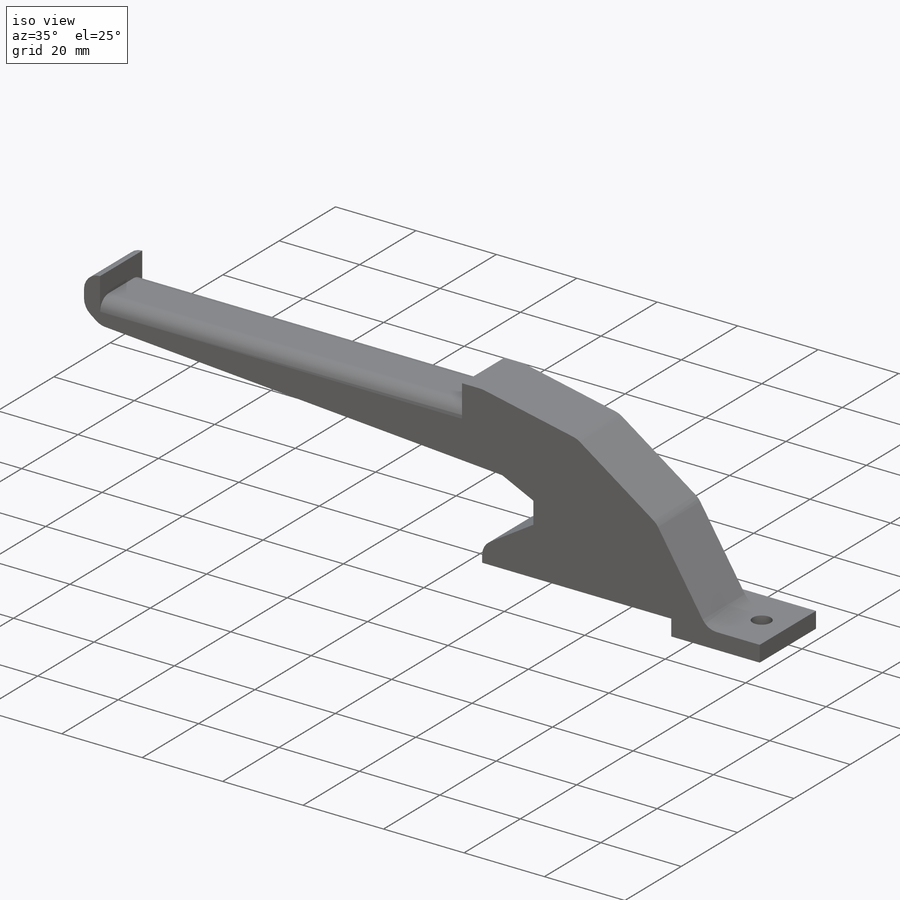
[diagram: iso view]
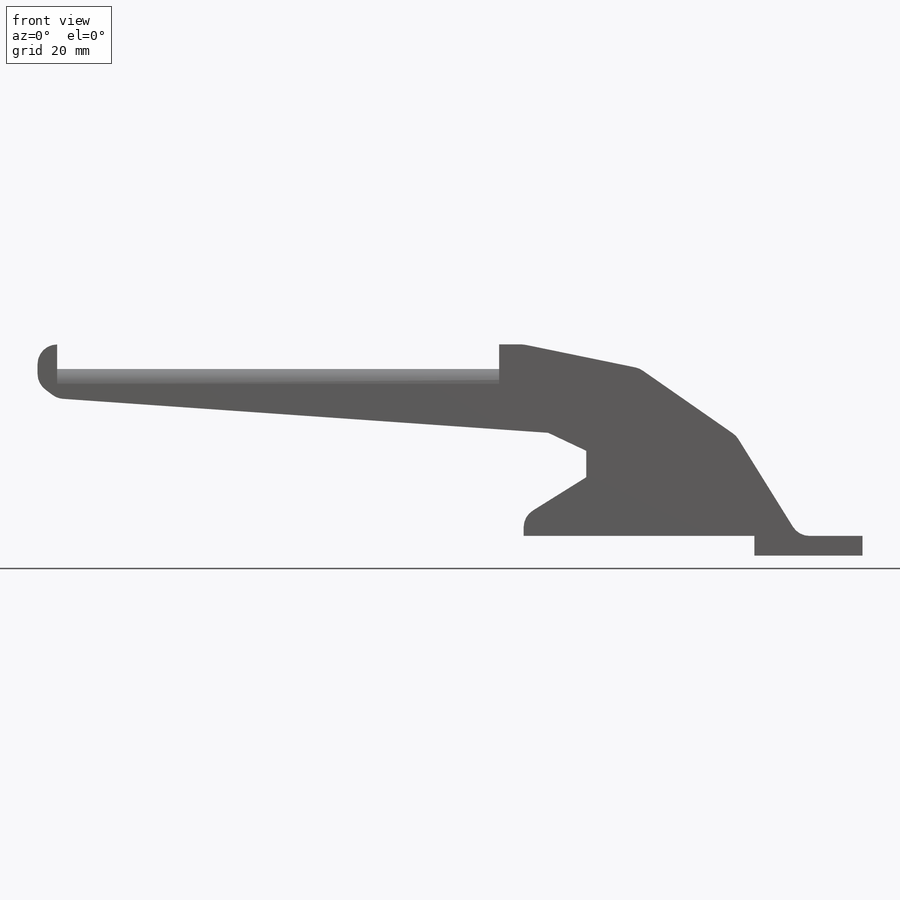
[diagram: front view]
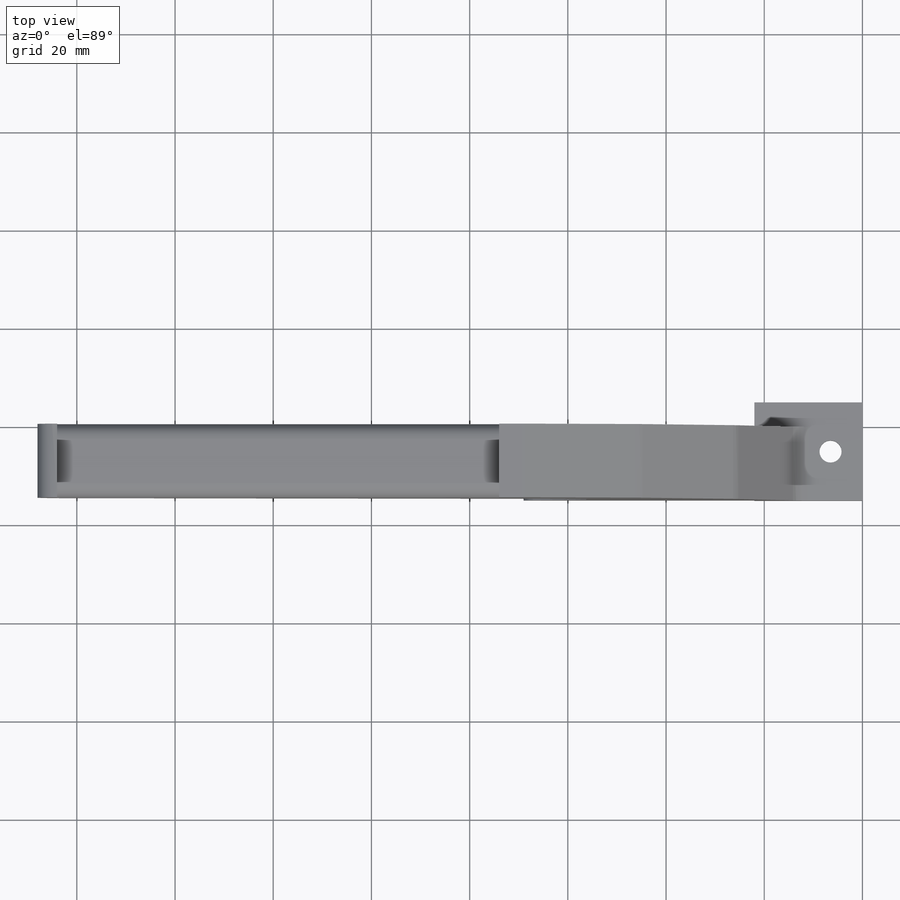
[diagram: top view]
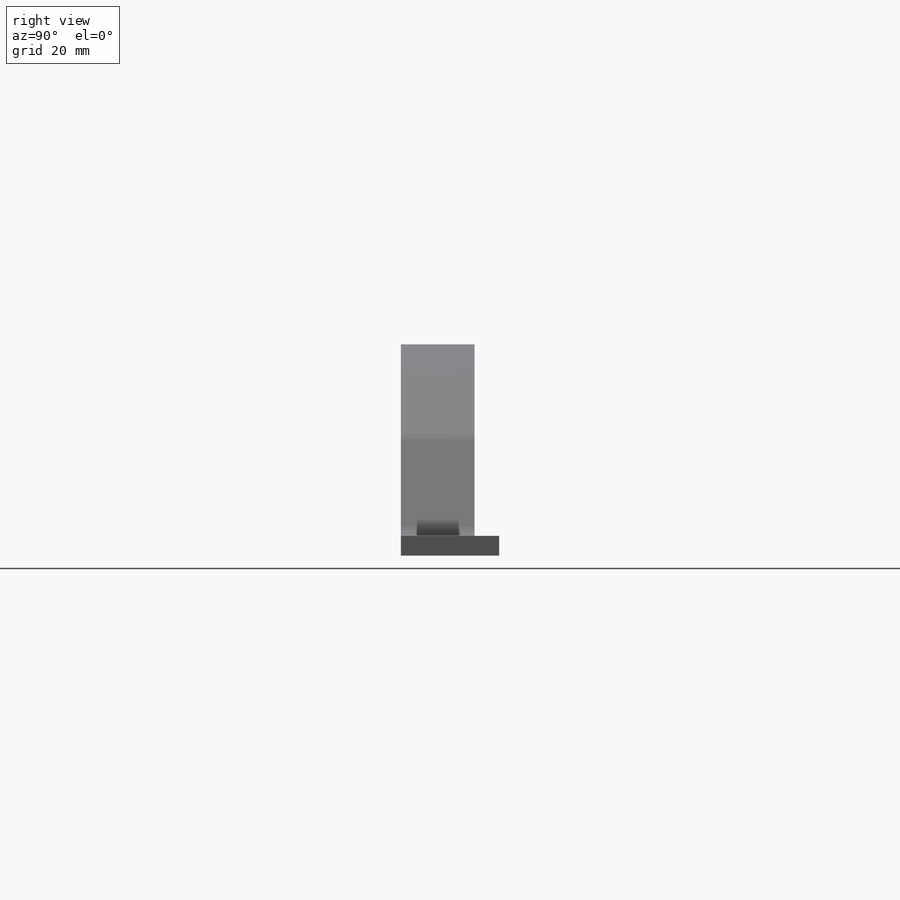
[diagram: right view]
SOLIDWORKS PART (.sldprt)
format: sldprt  version: not decoded by parser v0  size: 252,928 bytes
history: native  units: mm
features: sketch x4, plane x3, extrude x2, fillet x2, material x1, hole x1 (+9 scaffold rows collapsed)
feature tree (22):
  scaffold x9  (default folders/planes/origin — collapsed)
  material  "Matériau <non spécifié>"
  plane  "Plan de face"
  plane  "Plan de dessus"
  plane  "Plan de droite"
  sketch  "Esquisse1"  dims[c1.D15=~54.67407mm c1.D1=4.0mm c1.D2=22.0mm c1.D3=13.0mm c1.D4=47.0mm c1.D5=43.0mm c1.D6=34.0mm c1.D7=4.0mm c2.D6=5.0mm c2.D8=5.0mm c2.D9=5.0mm c2.D10=4.0mm c2.D11=10.0mm c2.D12=8.0mm c2.D13=4.0mm c3.D11=11.0mm c3.D14=18.0mm c3.D15=10.0mm c3.D16=90.0mm]
  extrude  "Boss.-Extru.1"  Depth=15mm
  fillet  "Congé1"  Radius=3mm
  fillet  "Congé2"  Radius=4mm
  sketch  "Esquisse2"
  extrude  "Boss.-Extru.2"  Depth=5mm
  hole  "Dégagement M41"  Diameter=4.5mm Depth=16mm
  sketch  "Esquisse4"  dims[D1=10.0mm D2=6.5mm]
  sketch  "Esquisse3"  dims[hole-wizard template sketch: 46 standard entries collapsed; hole parameters kept: c15.Diamètre du perçage=4.5mm c15.Profondeur du perçage=16.0mm c15.D3=~14.816244mm c15.Angle de pointe=180.0deg]
decode coverage: 8 of 9 modeling features carry decoded parameters
note: ~ marks probable driven/reference dimensions
note: suppression state not decoded; provenance and decode notes live in map.json
